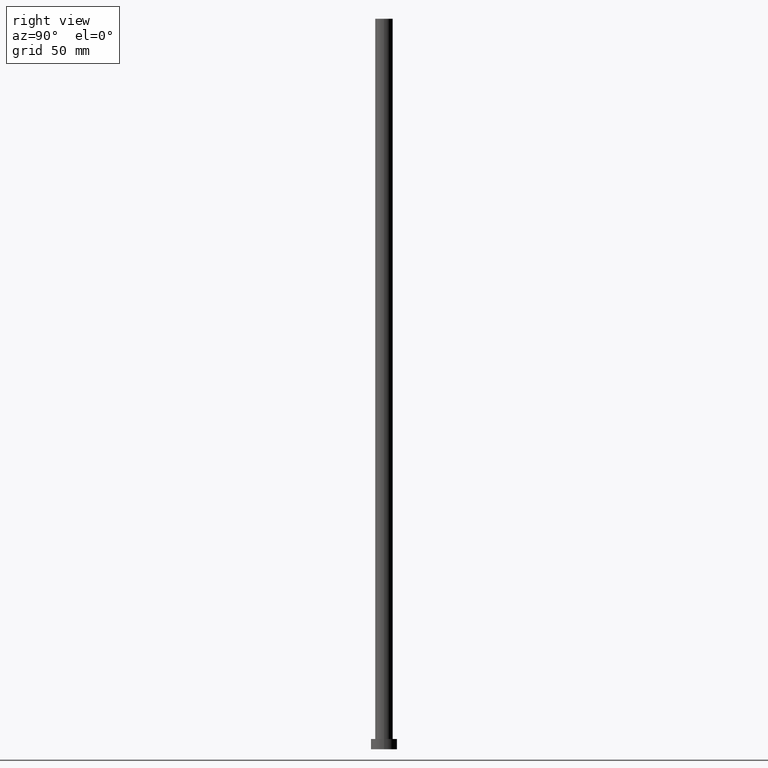
[diagram: clean part render]
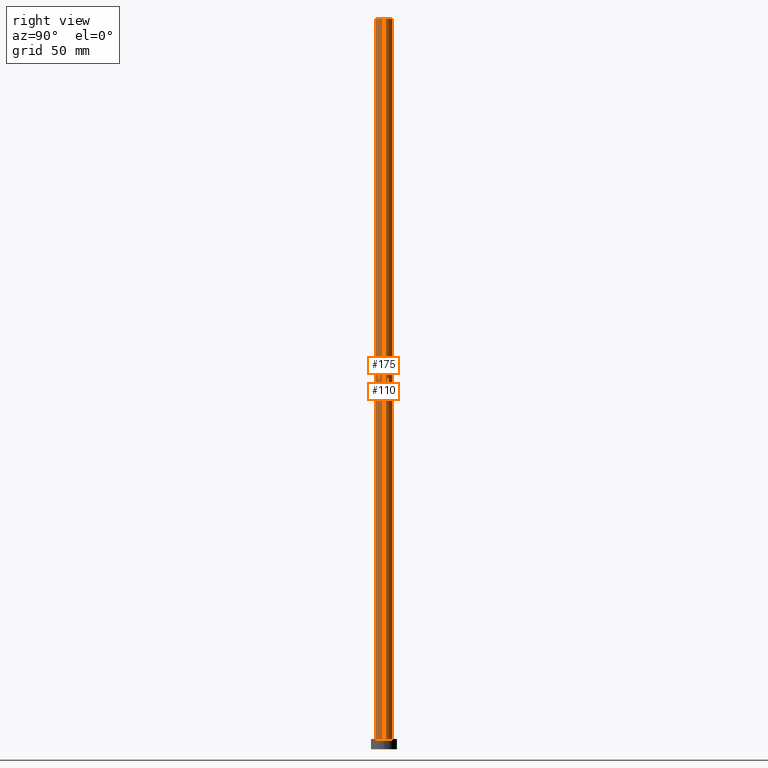
[diagram: same view with one multi-face feature highlighted, each face labeled with its STEP entity id]
A machine part, right view. The highlighted faces form ONE feature: a constant-radius fillet chain: 2 tangent blend faces with common blend radius 6 mm. The faces share edges in the B-rep.
Their STEP definitions:
[1] entity #110 (Cylinder):
#10 = DIRECTION ( 'NONE',  ( 0.000000000000000000, 0.000000000000000000, 1.000000000000000000 ) ) ;
#12 = CIRCLE ( 'NONE', #157, 6.000000000000000888 ) ;
#13 = EDGE_LOOP ( 'NONE', ( #249, #207, #118, #179 ) ) ;
#31 = EDGE_CURVE ( 'NONE', #172, #93, #174, .T. ) ;
#43 = VECTOR ( 'NONE', #143, 1000.000000000000000 ) ;
#56 = DIRECTION ( 'NONE',  ( 0.000000000000000000, 0.000000000000000000, 1.000000000000000000 ) ) ;
#58 = CARTESIAN_POINT ( 'NONE',  ( 6.000000000000000888, 7.347880794884120722E-16, 500.0000000000000000 ) ) ;
#60 = EDGE_CURVE ( 'NONE', #210, #172, #126, .T. ) ;
#65 = VECTOR ( 'NONE', #253, 1000.000000000000000 ) ;
#70 = CARTESIAN_POINT ( 'NONE',  ( 0.000000000000000000, 0.000000000000000000, 7.000000000000000000 ) ) ;
#84 = AXIS2_PLACEMENT_3D ( 'NONE', #220, #160, #218 ) ;
#88 = CARTESIAN_POINT ( 'NONE',  ( -6.000000000000000888, 0.000000000000000000, 500.0000000000000000 ) ) ;
#89 = CARTESIAN_POINT ( 'NONE',  ( 6.000000000000000888, 7.347880794884120722E-16, 7.000000000000000000 ) ) ;
#92 = AXIS2_PLACEMENT_3D ( 'NONE', #230, #56, #141 ) ;
#93 = VERTEX_POINT ( 'NONE', #219 ) ;
#96 = EDGE_CURVE ( 'NONE', #210, #209, #184, .T. ) ;
#107 = FACE_OUTER_BOUND ( 'NONE', #13, .T. ) ;
#110 = ADVANCED_FACE ( 'NONE', ( #107 ), #203, .T. ) ;
#118 = ORIENTED_EDGE ( 'NONE', *, *, #245, .T. ) ;
#126 = CIRCLE ( 'NONE', #92, 6.000000000000000888 ) ;
#141 = DIRECTION ( 'NONE',  ( 1.000000000000000000, 0.000000000000000000, 0.000000000000000000 ) ) ;
#143 = DIRECTION ( 'NONE',  ( -0.000000000000000000, -0.000000000000000000, -1.000000000000000000 ) ) ;
#157 = AXIS2_PLACEMENT_3D ( 'NONE', #70, #10, #170 ) ;
#160 = DIRECTION ( 'NONE',  ( -0.000000000000000000, -0.000000000000000000, -1.000000000000000000 ) ) ;
#164 = CARTESIAN_POINT ( 'NONE',  ( 6.000000000000000888, 7.347880794884120722E-16, 500.0000000000000000 ) ) ;
#170 = DIRECTION ( 'NONE',  ( 1.000000000000000000, 0.000000000000000000, 0.000000000000000000 ) ) ;
#172 = VERTEX_POINT ( 'NONE', #88 ) ;
#174 = LINE ( 'NONE', #255, #65 ) ;
#179 = ORIENTED_EDGE ( 'NONE', *, *, #31, .F. ) ;
#184 = LINE ( 'NONE', #58, #43 ) ;
#203 = CYLINDRICAL_SURFACE ( 'NONE', #84, 6.000000000000000888 ) ;
#207 = ORIENTED_EDGE ( 'NONE', *, *, #96, .T. ) ;
#209 = VERTEX_POINT ( 'NONE', #89 ) ;
#210 = VERTEX_POINT ( 'NONE', #164 ) ;
#218 = DIRECTION ( 'NONE',  ( -1.000000000000000000, 0.000000000000000000, 0.000000000000000000 ) ) ;
#219 = CARTESIAN_POINT ( 'NONE',  ( -6.000000000000000888, 0.000000000000000000, 7.000000000000000000 ) ) ;
#220 = CARTESIAN_POINT ( 'NONE',  ( 0.000000000000000000, 0.000000000000000000, 500.0000000000000000 ) ) ;
#230 = CARTESIAN_POINT ( 'NONE',  ( 0.000000000000000000, 0.000000000000000000, 500.0000000000000000 ) ) ;
#245 = EDGE_CURVE ( 'NONE', #209, #93, #12, .T. ) ;
#249 = ORIENTED_EDGE ( 'NONE', *, *, #60, .F. ) ;
#253 = DIRECTION ( 'NONE',  ( -0.000000000000000000, -0.000000000000000000, -1.000000000000000000 ) ) ;
#255 = CARTESIAN_POINT ( 'NONE',  ( -6.000000000000000888, 0.000000000000000000, 500.0000000000000000 ) ) ;
[2] entity #175 (Cylinder):
#2 = DIRECTION ( 'NONE',  ( 0.000000000000000000, 0.000000000000000000, 1.000000000000000000 ) ) ;
#3 = CARTESIAN_POINT ( 'NONE',  ( 0.000000000000000000, 0.000000000000000000, 500.0000000000000000 ) ) ;
#18 = AXIS2_PLACEMENT_3D ( 'NONE', #3, #183, #131 ) ;
#23 = FACE_OUTER_BOUND ( 'NONE', #27, .T. ) ;
#27 = EDGE_LOOP ( 'NONE', ( #151, #154, #49, #97 ) ) ;
#31 = EDGE_CURVE ( 'NONE', #172, #93, #174, .T. ) ;
#38 = CARTESIAN_POINT ( 'NONE',  ( 0.000000000000000000, 0.000000000000000000, 500.0000000000000000 ) ) ;
#43 = VECTOR ( 'NONE', #143, 1000.000000000000000 ) ;
#48 = CIRCLE ( 'NONE', #144, 6.000000000000000888 ) ;
#49 = ORIENTED_EDGE ( 'NONE', *, *, #31, .T. ) ;
#58 = CARTESIAN_POINT ( 'NONE',  ( 6.000000000000000888, 7.347880794884120722E-16, 500.0000000000000000 ) ) ;
#65 = VECTOR ( 'NONE', #253, 1000.000000000000000 ) ;
#88 = CARTESIAN_POINT ( 'NONE',  ( -6.000000000000000888, 0.000000000000000000, 500.0000000000000000 ) ) ;
#89 = CARTESIAN_POINT ( 'NONE',  ( 6.000000000000000888, 7.347880794884120722E-16, 7.000000000000000000 ) ) ;
#91 = AXIS2_PLACEMENT_3D ( 'NONE', #38, #162, #236 ) ;
#93 = VERTEX_POINT ( 'NONE', #219 ) ;
#96 = EDGE_CURVE ( 'NONE', #210, #209, #184, .T. ) ;
#97 = ORIENTED_EDGE ( 'NONE', *, *, #237, .T. ) ;
#131 = DIRECTION ( 'NONE',  ( 1.000000000000000000, 0.000000000000000000, 0.000000000000000000 ) ) ;
#133 = DIRECTION ( 'NONE',  ( 1.000000000000000000, 0.000000000000000000, 0.000000000000000000 ) ) ;
#138 = EDGE_CURVE ( 'NONE', #172, #210, #149, .T. ) ;
#143 = DIRECTION ( 'NONE',  ( -0.000000000000000000, -0.000000000000000000, -1.000000000000000000 ) ) ;
#144 = AXIS2_PLACEMENT_3D ( 'NONE', #182, #2, #133 ) ;
#149 = CIRCLE ( 'NONE', #18, 6.000000000000000888 ) ;
#151 = ORIENTED_EDGE ( 'NONE', *, *, #96, .F. ) ;
#154 = ORIENTED_EDGE ( 'NONE', *, *, #138, .F. ) ;
#162 = DIRECTION ( 'NONE',  ( -0.000000000000000000, -0.000000000000000000, -1.000000000000000000 ) ) ;
#164 = CARTESIAN_POINT ( 'NONE',  ( 6.000000000000000888, 7.347880794884120722E-16, 500.0000000000000000 ) ) ;
#172 = VERTEX_POINT ( 'NONE', #88 ) ;
#174 = LINE ( 'NONE', #255, #65 ) ;
#175 = ADVANCED_FACE ( 'NONE', ( #23 ), #186, .T. ) ;
#182 = CARTESIAN_POINT ( 'NONE',  ( 0.000000000000000000, 0.000000000000000000, 7.000000000000000000 ) ) ;
#183 = DIRECTION ( 'NONE',  ( 0.000000000000000000, 0.000000000000000000, 1.000000000000000000 ) ) ;
#184 = LINE ( 'NONE', #58, #43 ) ;
#186 = CYLINDRICAL_SURFACE ( 'NONE', #91, 6.000000000000000888 ) ;
#209 = VERTEX_POINT ( 'NONE', #89 ) ;
#210 = VERTEX_POINT ( 'NONE', #164 ) ;
#219 = CARTESIAN_POINT ( 'NONE',  ( -6.000000000000000888, 0.000000000000000000, 7.000000000000000000 ) ) ;
#236 = DIRECTION ( 'NONE',  ( -1.000000000000000000, 0.000000000000000000, 0.000000000000000000 ) ) ;
#237 = EDGE_CURVE ( 'NONE', #93, #209, #48, .T. ) ;
#253 = DIRECTION ( 'NONE',  ( -0.000000000000000000, -0.000000000000000000, -1.000000000000000000 ) ) ;
#255 = CARTESIAN_POINT ( 'NONE',  ( -6.000000000000000888, 0.000000000000000000, 500.0000000000000000 ) ) ;